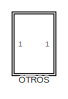
[diagram: root canvas - part 1/3, top center region]
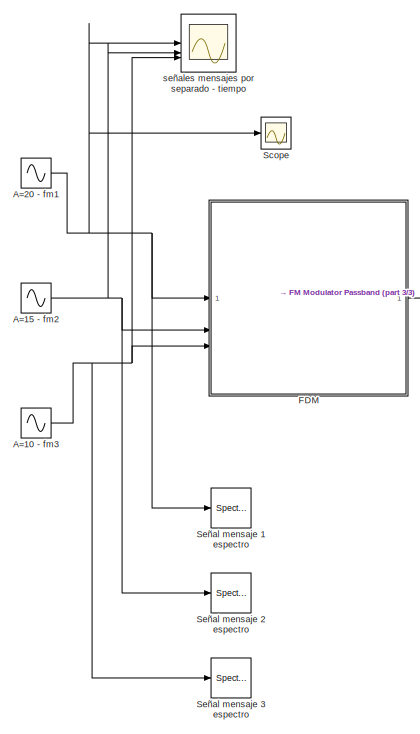
[diagram: root canvas - part 2/3, left side, full height]
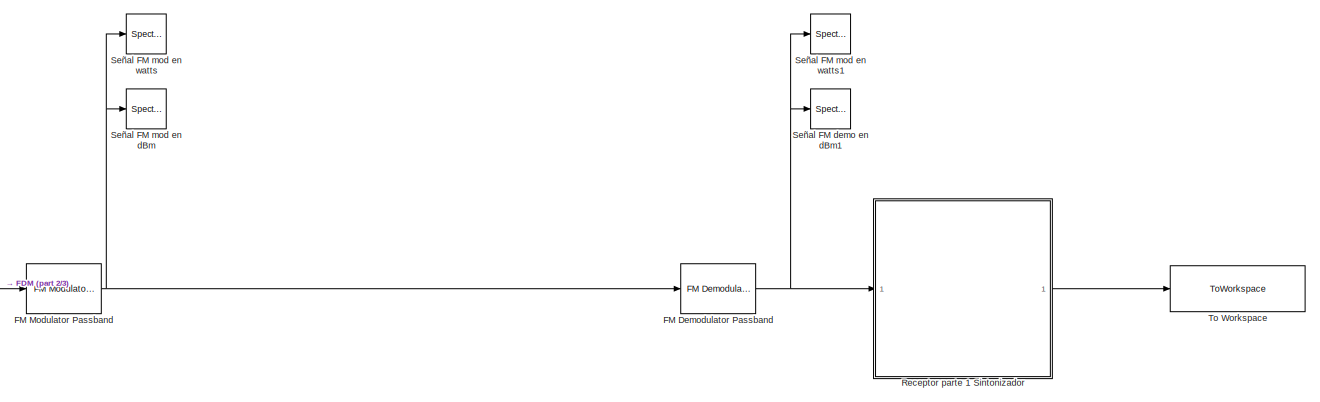
[diagram: root canvas - part 3/3, full width, middle band]
MODEL slx_371b735b7593
KIND model
CONFIG AbsTol = auto
CONFIG EnableMultiTasking = off
CONFIG FixedStep = auto
CONFIG MaxStep = auto
CONFIG MinStep = auto
CONFIG RelTol = 1e-3
CONFIG SampleTimeConstraint = Unconstrained
CONFIG SolverName = VariableStepAuto
CONFIG StartTime = 0.0
CONFIG StopTime = 0.5
BLOCK [Sin] A=10 - fm3
  Amplitude = test_am3
  Frequency = 2*pi*test_fm3
  Phase = pi/2
  SampleTime = test_ts
BLOCK [Sin] A=15 - fm2
  Amplitude = test_am2
  Frequency = 2*pi*test_fm2
  Phase = pi/2
  SampleTime = test_ts
BLOCK [Sin] A=20 - fm1
  Amplitude = test_am1
  Frequency = 2*pi*test_fm1
  SampleTime = test_ts
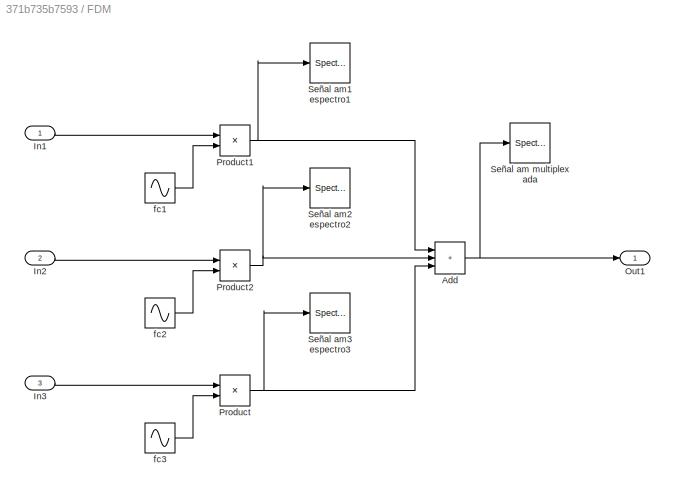
BLOCK [SubSystem] FDM
BLOCK [Sum] FDM/Add
  IconShape = rectangular
  Inputs = +++
BLOCK [Inport] FDM/In1
BLOCK [Inport] FDM/In2
  Port = 2
BLOCK [Inport] FDM/In3
  Port = 3
BLOCK [Outport] FDM/Out1
BLOCK [Product] FDM/Product
BLOCK [Product] FDM/Product1
BLOCK [Product] FDM/Product2
BLOCK [SpectrumAnalyzer] FDM/Señal am multiplexada
  GraphicalSettings = {"GraphicalSettings":{"Style":{"BackgroundColor":[0.12941176470588237,0.12941176470588237,0.12941176470588237],"AxesColor":[0.07058823529411765,0.07058823529411765,0.07058823529411765],"LabelsColor":[0.8509803921568627,0.8509803921568627,0.8509803921568627],"PreserveColors":false,"Visible":[true],"LineStyle":["-"],"LineColor":[[1,1,0.06666666666666667]],"LineWidth":[1.5],"Marker":["none"],"FontSiz...<+929ch>  <repeated x15 — deduplicated; at blocks: Señal am multiplexada, Señal am1 espectro1, Señal am2 espectro2, Señal am3 espectro3, Señal F demo en dBm1, Señal FI mod en watts1, Señal FI demo en dBm, Señal FI mod en watts, Señal FM demo en dBm1, Señal FM mod en dBm, Señal FM mod en watts, Señal FM mod en watts1, Señal mensaje 1 espectro, Señal mensaje 2 espectro, Señal mensaje 3 espectro>
  OpenAtSimulationStart = off
  SampleRate = 44.1e3
  ScopeFrameLocation = window
  SelectedToolstripTab = spectrumAnalyzerToolstrip.spectrumTab
  ShowLegend = on
  SpectrumUnits = Watts
  StartFrequency = 20
  StopFrequency = 20e3
  WasSavedAsWebScope = on
  WindowPosition = [1.000000,1.000000,1920.000000,1057.000000,]
  YLimits = [-3.02841588,27.25574932]
BLOCK [SpectrumAnalyzer] FDM/Señal am1 espectro1
  OpenAtSimulationStart = off
  SampleRate = 44.1e3
  ScopeFrameLocation = window
  SelectedToolstripTab = spectrumAnalyzerToolstrip.spectrumTab
  ShowLegend = on
  SpectrumUnits = Watts
  StartFrequency = 20
  StopFrequency = 20e3
  WasSavedAsWebScope = on
  WindowPosition = [1.000000,1.000000,1920.000000,1057.000000,]
  YLimits = [-3.10580485,27.95224367]
BLOCK [SpectrumAnalyzer] FDM/Señal am2 espectro2
  OpenAtSimulationStart = off
  SampleRate = 44.1e3
  ScopeFrameLocation = window
  SelectedToolstripTab = spectrumAnalyzerToolstrip.spectrumTab
  ShowLegend = on
  SpectrumUnits = Watts
  StartFrequency = 20
  StopFrequency = 20e3
  WasSavedAsWebScope = on
  WindowPosition = [1.000000,1.000000,1920.000000,1057.000000,]
  YLimits = [-1.72478242,15.52304178]
BLOCK [SpectrumAnalyzer] FDM/Señal am3 espectro3
  OpenAtSimulationStart = off
  SampleRate = 44.1e3
  ScopeFrameLocation = window
  SelectedToolstripTab = spectrumAnalyzerToolstrip.spectrumTab
  ShowLegend = on
  SpectrumUnits = Watts
  StartFrequency = 20
  StopFrequency = 20e3
  WasSavedAsWebScope = on
  WindowPosition = [1.000000,1.000000,1920.000000,1057.000000,]
  YLimits = [-0.78111251,7.03001259]
BLOCK [Sin] FDM/fc1
  Amplitude = test_ac1
  Frequency = 2*pi*test_fc1
  SampleTime = test_ts
  VectorParams1D = off
BLOCK [Sin] FDM/fc2
  Amplitude = test_ac2
  Frequency = 2*pi*test_fc2
  Phase = pi/2
  SampleTime = test_ts
BLOCK [Sin] FDM/fc3
  Amplitude = test_ac3
  Frequency = 2*pi*test_fc3
  Phase = pi/2
  SampleTime = test_ts
BLOCK [Reference] FM Demodulator Passband  REF=commanapbnd3/FM
Demodulator
Passband
  SourceBlock = commanapbnd3/FM\nDemodulator\nPassband
  SourceType = FM Demodulator Passband
BLOCK [Reference] FM Modulator Passband  REF=commanapbnd3/FM
Modulator
Passband
  SourceBlock = commanapbnd3/FM\nModulator\nPassband
  SourceType = FM Modulator Passband
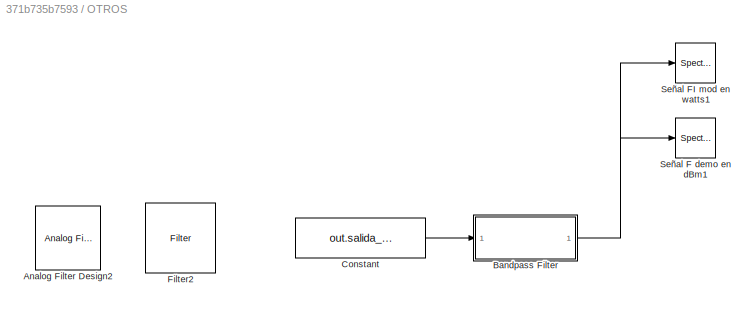
BLOCK [SubSystem] OTROS
  Commented = on
BLOCK [Reference] OTROS/Analog Filter Design2  REF=dspfdesign/Analog
Filter Design
  Commented = on
  SourceBlock = dspfdesign/Analog\nFilter Design
  SourceType = Analog Filter Design
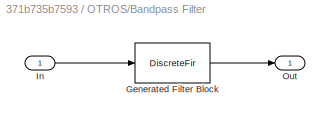
BLOCK [SubSystem] OTROS/Bandpass Filter
  Commented = on
  CopyFcn = fdesignblkfcn(gcbh, {'CopyFcn'});
  DialogController = fdesignblkfcn
  InitFcn = fdesignblkfcn(gcbh, {'InitFcn'});
  UserDataPersistent = on
BLOCK [DiscreteFir] OTROS/Bandpass Filter/Generated Filter Block
  Coefficients = [-1.1273741661103097e-05 -0.000561993375017939118 -8.62359604901059074e-06 -7.50691451952865943e-06 7.81285012600206921e-06 2.00315466230824187e-05 2.45542488551999855e-05 1.96579514985156776e-05 7.23640037101240103e-06 -7.77377859031782842e-06 -1.95786442923720696e-05 -2.36211150463387239e-05 -1.85928598378592355e-05 -6.64846825538893349e-06 7.29488094785432066e-06 1.78537303848593843e-05 2.10687...<+104961ch>
  InputPortMap = u0
  InputProcessing = Columns as channels (frame based)
  OutputPortMap = o0
  Tag = BlockMethodSubSystem
BLOCK [Inport] OTROS/Bandpass Filter/In
BLOCK [Outport] OTROS/Bandpass Filter/Out
  VectorParamsAs1DForOutWhenUnconnected = off
BLOCK [Constant] OTROS/Constant
  Commented = on
  SampleTime = test_ts
  Value = out.salida_sintonizador
BLOCK [Reference] OTROS/Filter2  REF=rfmathmodels2/Filter
  Commented = on
  SourceBlock = rfmathmodels2/Filter
  SourceType = rf.Filter
BLOCK [SpectrumAnalyzer] OTROS/Señal F demo en dBm1
  Commented = on
  OpenAtSimulationStart = off
  SampleRate = 44.1e3
  ScopeFrameLocation = window
  SelectedToolstripTab = spectrumAnalyzerToolstrip.spectrumTab
  ShowLegend = on
  StartFrequency = 20
  StopFrequency = 20e3
  WasSavedAsWebScope = on
  WindowPosition = [1.000000,1.000000,1920.000000,1057.000000,]
  YLimits = [-108.62580061,38.40656003]
BLOCK [SpectrumAnalyzer] OTROS/Señal FI mod en watts1
  Commented = on
  OpenAtSimulationStart = off
  SampleRate = 44.1e3
  ScopeFrameLocation = window
  SelectedToolstripTab = spectrumAnalyzerToolstrip.spectrumTab
  ShowLegend = on
  SpectrumUnits = Watts
  StartFrequency = 20
  StopFrequency = 20e3
  WasSavedAsWebScope = on
  WindowPosition = [1.000000,1.000000,1920.000000,1057.000000,]
  YLimits = [-0.0293253,0.26392767]
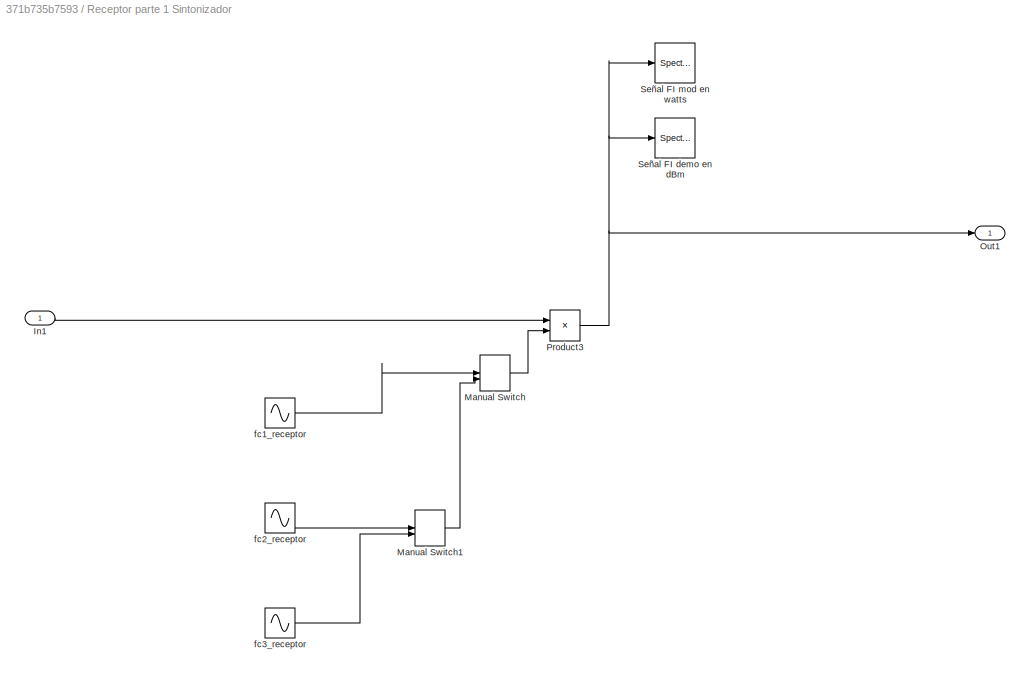
BLOCK [SubSystem] Receptor parte 1 Sintonizador
BLOCK [Inport] Receptor parte 1 Sintonizador/In1
BLOCK [ManualSwitch] Receptor parte 1 Sintonizador/Manual Switch
  CurrentSetting = 0
BLOCK [ManualSwitch] Receptor parte 1 Sintonizador/Manual Switch1
BLOCK [Outport] Receptor parte 1 Sintonizador/Out1
BLOCK [Product] Receptor parte 1 Sintonizador/Product3
BLOCK [SpectrumAnalyzer] Receptor parte 1 Sintonizador/Señal FI demo en dBm
  OpenAtSimulationStart = off
  SampleRate = 44.1e3
  ScopeFrameLocation = window
  SelectedToolstripTab = spectrumAnalyzerToolstrip.spectrumTab
  ShowLegend = on
  StartFrequency = 20
  StopFrequency = 20e3
  WasSavedAsWebScope = on
  WindowPosition = [1.000000,1.000000,1920.000000,1057.000000,]
  YLimits = [-183.2628892,62.54011418]
BLOCK [SpectrumAnalyzer] Receptor parte 1 Sintonizador/Señal FI mod en watts
  OpenAtSimulationStart = off
  SampleRate = 44.1e3
  ScopeFrameLocation = window
  SelectedToolstripTab = spectrumAnalyzerToolstrip.spectrumTab
  ShowLegend = on
  SpectrumUnits = Watts
  StartFrequency = 20
  StopFrequency = 20e3
  WasSavedAsWebScope = on
  WindowPosition = [7.000000,-1079.000000,1920.000000,1057.000000,]
  YLimits = [-0.78143237,7.03289133]
BLOCK [Sin] Receptor parte 1 Sintonizador/fc1_receptor
  Frequency = 2*pi*test_fc1_receptor
  SampleTime = test_ts
  VectorParams1D = off
BLOCK [Sin] Receptor parte 1 Sintonizador/fc2_receptor
  Frequency = 2*pi*test_fc2_receptor
  SampleTime = test_ts
  VectorParams1D = off
BLOCK [Sin] Receptor parte 1 Sintonizador/fc3_receptor
  Frequency = 2*pi*test_fc3_receptor
  SampleTime = test_ts
  VectorParams1D = off
BLOCK [Scope] Scope
  Floating = off
  NumInputPorts = 1
  ScopeSpecificationString = Simulink.scopes.TimeScopeBlockCfg('CurrentConfiguration', extmgr.ConfigurationSet(extmgr.Configuration('Core','General UI',true),extmgr.Configuration('Core','Source UI',true),extmgr.Configuration('Sources','WiredSimulink',true,'DataLoggingVariableName','ScopeData1'),extmgr.Configuration('Visuals','Time Domain',true,'SerializedDisplays',{struct('MinYLimReal','-25.00000','MaxYLimReal','25.00000','YL...<+1448ch>
BLOCK [SpectrumAnalyzer] Señal FM demo en dBm1
  OpenAtSimulationStart = off
  SampleRate = 44.1e3
  ScopeFrameLocation = window
  SelectedToolstripTab = spectrumAnalyzerToolstrip.spectrumTab
  ShowLegend = on
  StartFrequency = 20
  StopFrequency = 20e3
  WasSavedAsWebScope = on
  WindowPosition = [1.000000,1.000000,1920.000000,1057.000000,]
  YLimits = [-84.49489701,58.22565386]
BLOCK [SpectrumAnalyzer] Señal FM mod en dBm
  OpenAtSimulationStart = off
  SampleRate = 44.1e3
  ScopeFrameLocation = window
  SelectedToolstripTab = spectrumAnalyzerToolstrip.spectrumTab
  ShowLegend = on
  StartFrequency = 20
  StopFrequency = 20e3
  WasSavedAsWebScope = on
  WindowPosition = [1.000000,1.000000,1920.000000,1057.000000,]
  YLimits = [-106.50993919,36.77110611]
BLOCK [SpectrumAnalyzer] Señal FM mod en watts
  OpenAtSimulationStart = off
  SampleRate = 44.1e3
  ScopeFrameLocation = window
  SelectedToolstripTab = spectrumAnalyzerToolstrip.spectrumTab
  ShowLegend = on
  SpectrumUnits = Watts
  StartFrequency = 20
  StopFrequency = 20e3
  WasSavedAsWebScope = on
  WindowPosition = [1.000000,1.000000,1920.000000,1057.000000,]
  YLimits = [-0.02193866,0.19744797]
BLOCK [SpectrumAnalyzer] Señal FM mod en watts1
  OpenAtSimulationStart = off
  SampleRate = 44.1e3
  ScopeFrameLocation = window
  SelectedToolstripTab = spectrumAnalyzerToolstrip.spectrumTab
  ShowLegend = on
  SpectrumUnits = Watts
  StartFrequency = 20
  StopFrequency = 20e3
  WasSavedAsWebScope = on
  WindowPosition = [1.000000,1.000000,1920.000000,1057.000000,]
  YLimits = [-3.1064895,27.95840554]
BLOCK [SpectrumAnalyzer] Señal mensaje 1 espectro
  OpenAtSimulationStart = off
  SampleRate = 44.1e3
  ScopeFrameLocation = window
  SelectedToolstripTab = spectrumAnalyzerToolstrip.spectrumTab
  ShowLegend = on
  SpectrumUnits = Watts
  StartFrequency = 20
  StopFrequency = 20e3
  WasSavedAsWebScope = on
  WindowPosition = [1.000000,1.000000,1920.000000,1057.000000,]
  YLimits = [-12.50000063,112.50000568]
BLOCK [SpectrumAnalyzer] Señal mensaje 2 espectro
  OpenAtSimulationStart = off
  SampleRate = 44.1e3
  ScopeFrameLocation = window
  SelectedToolstripTab = spectrumAnalyzerToolstrip.spectrumTab
  ShowLegend = on
  SpectrumUnits = Watts
  StartFrequency = 20
  StopFrequency = 20e3
  WasSavedAsWebScope = on
  WindowPosition = [1.000000,1.000000,1920.000000,1057.000000,]
  YLimits = [-7.03105985,63.27953861]
BLOCK [SpectrumAnalyzer] Señal mensaje 3 espectro
  OpenAtSimulationStart = off
  SampleRate = 44.1e3
  ScopeFrameLocation = window
  SelectedToolstripTab = spectrumAnalyzerToolstrip.spectrumTab
  ShowLegend = on
  SpectrumUnits = Watts
  StartFrequency = 20
  StopFrequency = 20e3
  WasSavedAsWebScope = on
  WindowPosition = [1.000000,1.000000,1920.000000,1057.000000,]
  YLimits = [-3.12012674,28.08114066]
BLOCK [ToWorkspace] To Workspace
  FixptAsFi = on
  MaxDataPoints = inf
  SampleTime = test_ts
  Save2DSignal = 2-D array (concatenate along first dimension)
  VariableName = salida_sintonizador
BLOCK [Scope] señales mensajes por separado - tiempo
  Floating = off
  NumInputPorts = 3
  ScopeSpecificationString = Simulink.scopes.TimeScopeBlockCfg('CurrentConfiguration', extmgr.ConfigurationSet(extmgr.Configuration('Core','General UI',true),extmgr.Configuration('Core','Source UI',true),extmgr.Configuration('Sources','WiredSimulink',true,'DataLoggingVariableName','ScopeData1'),extmgr.Configuration('Visuals','Time Domain',true,'SerializedDisplays',{struct('MinYLimReal','-2.22844','MaxYLimReal','1.42979','YLab...<+2787ch>
NET A=10 - fm3:1 -> FDM:3, Señal mensaje 3 espectro:1, señales mensajes por separado - tiempo:3
NET A=15 - fm2:1 -> FDM:2, Señal mensaje 2 espectro:1, señales mensajes por separado - tiempo:2
NET A=20 - fm1:1 -> FDM:1, Scope:1, Señal mensaje 1 espectro:1, señales mensajes por separado - tiempo:1
NET FDM/Add:1 -> FDM/Out1:1, FDM/Señal am multiplexada:1
LINE FDM/In1:1 -> FDM/Product1:1
LINE FDM/In2:1 -> FDM/Product2:1
LINE FDM/In3:1 -> FDM/Product:1
NET FDM/Product1:1 -> FDM/Add:1, FDM/Señal am1 espectro1:1
NET FDM/Product2:1 -> FDM/Add:2, FDM/Señal am2 espectro2:1
NET FDM/Product:1 -> FDM/Add:3, FDM/Señal am3 espectro3:1
LINE FDM/fc1:1 -> FDM/Product1:2
LINE FDM/fc2:1 -> FDM/Product2:2
LINE FDM/fc3:1 -> FDM/Product:2
LINE FDM:1 -> FM Modulator Passband:1
NET FM Demodulator Passband:1 -> Receptor parte 1 Sintonizador:1, Señal FM demo en dBm1:1, Señal FM mod en watts1:1
NET FM Modulator Passband:1 -> FM Demodulator Passband:1, Señal FM mod en dBm:1, Señal FM mod en watts:1
NET OTROS/Bandpass Filter:1 -> OTROS/Señal F demo en dBm1:1, OTROS/Señal FI mod en watts1:1
LINE OTROS/Constant:1 -> OTROS/Bandpass Filter:1
LINE Receptor parte 1 Sintonizador/In1:1 -> Receptor parte 1 Sintonizador/Product3:1
LINE Receptor parte 1 Sintonizador/Manual Switch1:1 -> Receptor parte 1 Sintonizador/Manual Switch:2
LINE Receptor parte 1 Sintonizador/Manual Switch:1 -> Receptor parte 1 Sintonizador/Product3:2
NET Receptor parte 1 Sintonizador/Product3:1 -> Receptor parte 1 Sintonizador/Out1:1, Receptor parte 1 Sintonizador/Señal FI demo en dBm:1, Receptor parte 1 Sintonizador/Señal FI mod en watts:1
LINE Receptor parte 1 Sintonizador/fc1_receptor:1 -> Receptor parte 1 Sintonizador/Manual Switch:1
LINE Receptor parte 1 Sintonizador/fc2_receptor:1 -> Receptor parte 1 Sintonizador/Manual Switch1:1
LINE Receptor parte 1 Sintonizador/fc3_receptor:1 -> Receptor parte 1 Sintonizador/Manual Switch1:2
LINE Receptor parte 1 Sintonizador:1 -> To Workspace:1
note: NET lines group one-source signal fan-out (src -> all destinations, sorted); 1:1 wires keep LINE
